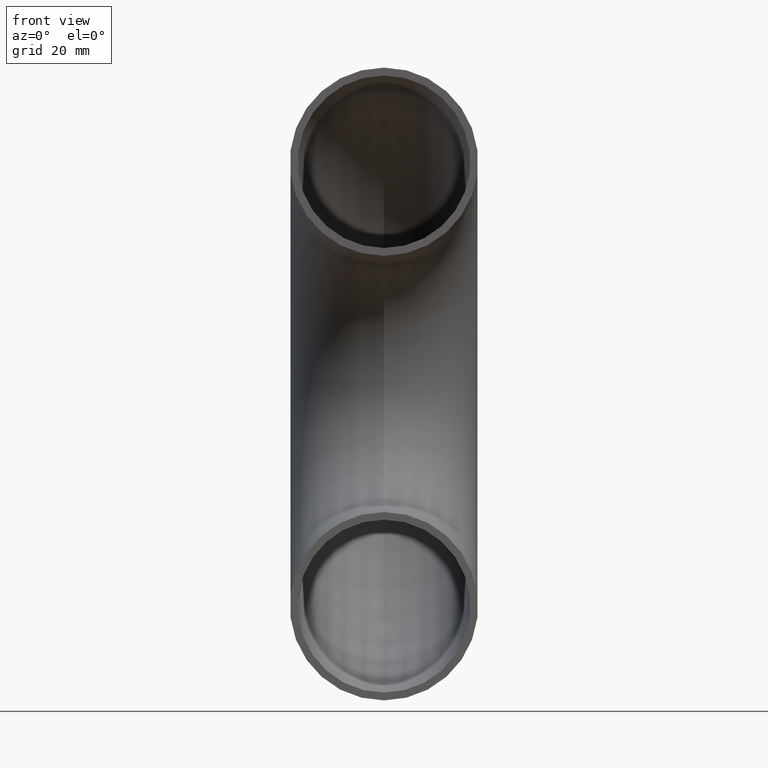
[diagram: clean part render]
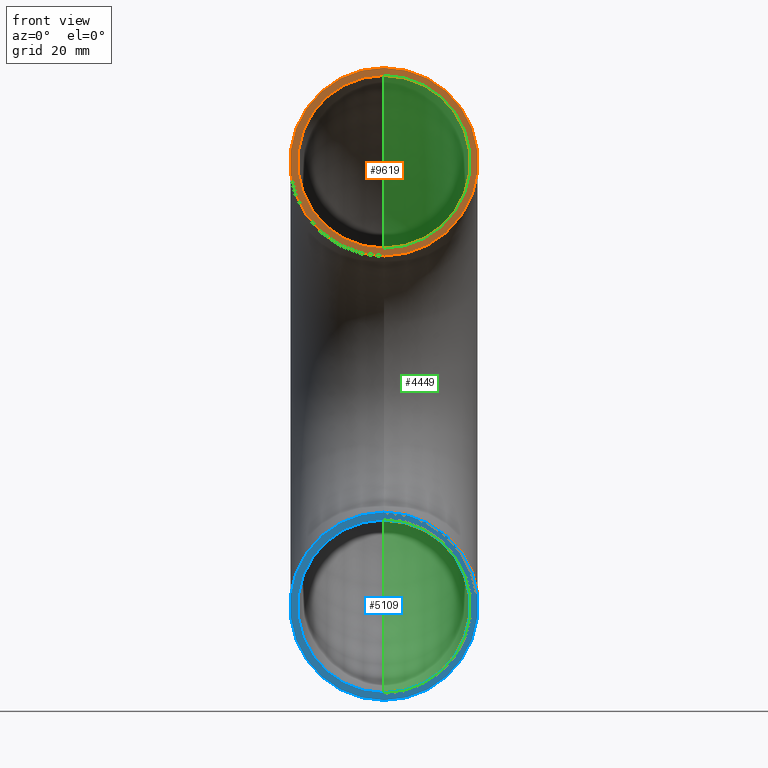
[diagram: same view with three faces highlighted in distinct colors, each labeled with its STEP entity id]
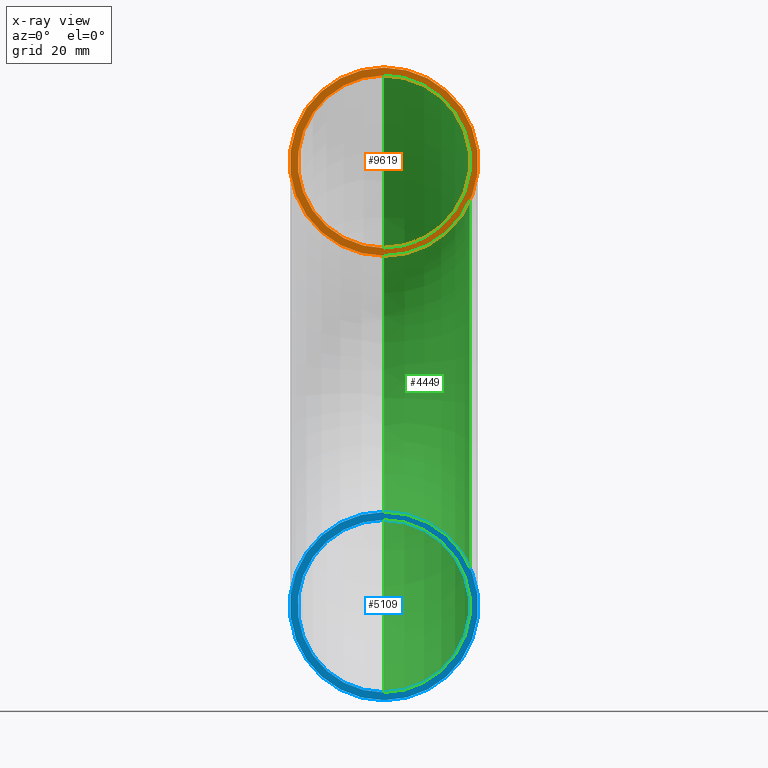
[diagram: x-ray of the same camera — body ghosted, the three highlighted faces saturated]
A machine part, front view with three faces highlighted in distinct colors.
The next image is the same camera in x-ray (body ghosted, the three faces saturated) — at least one of them is partly hidden behind the body in this view.
Their STEP definitions:

[orange] entity #9619 — the highlighted planar face has unit normal (0, -1, 0).
#102 = EDGE_LOOP ( 'NONE', ( #2790, #3072 ) ) ;
#110 = VERTEX_POINT ( 'NONE', #5860 ) ;
#126 = VERTEX_POINT ( 'NONE', #5056 ) ;
#154 = AXIS2_PLACEMENT_3D ( 'NONE', #3656, #4580, #1216 ) ;
#215 = EDGE_CURVE ( 'NONE', #4041, #7655, #7259, .T. ) ;
#1216 = DIRECTION ( 'NONE',  ( 0.0000000000000000000, -1.224646799147353500E-016, -1.000000000000000000 ) ) ;
#1340 = EDGE_CURVE ( 'NONE', #7655, #4041, #2368, .T. ) ;
#1665 = CARTESIAN_POINT ( 'NONE',  ( 0.0000000000000000000, 6.980486755139909800E-015, 56.99999999999997200 ) ) ;
#2013 = CARTESIAN_POINT ( 'NONE',  ( 0.0000000000000000000, 4.267894095028523700E-015, 34.84999999999998000 ) ) ;
#2360 = EDGE_CURVE ( 'NONE', #126, #110, #8181, .T. ) ;
#2368 = CIRCLE ( 'NONE', #9953, 22.14999999999999500 ) ;
#2452 = AXIS2_PLACEMENT_3D ( 'NONE', #9990, #7578, #10067 ) ;
#2790 = ORIENTED_EDGE ( 'NONE', *, *, #9008, .T. ) ;
#2927 = AXIS2_PLACEMENT_3D ( 'NONE', #1665, #8525, #5914 ) ;
#3072 = ORIENTED_EDGE ( 'NONE', *, *, #2360, .T. ) ;
#3656 = CARTESIAN_POINT ( 'NONE',  ( 0.0000000000000000000, 6.980486755139909800E-015, 56.99999999999997200 ) ) ;
#3758 = ORIENTED_EDGE ( 'NONE', *, *, #215, .F. ) ;
#3764 = CARTESIAN_POINT ( 'NONE',  ( 0.0000000000000000000, 6.980486755139909800E-015, 56.99999999999997200 ) ) ;
#3884 = FACE_BOUND ( 'NONE', #10156, .T. ) ;
#4041 = VERTEX_POINT ( 'NONE', #6513 ) ;
#4193 = PLANE ( 'NONE',  #2927 ) ;
#4580 = DIRECTION ( 'NONE',  ( 0.0000000000000000000, -1.000000000000000000, 1.224646799147353200E-016 ) ) ;
#5056 = CARTESIAN_POINT ( 'NONE',  ( 0.0000000000000000000, 9.938008775080767700E-015, 81.14999999999997700 ) ) ;
#5332 = FACE_OUTER_BOUND ( 'NONE', #102, .T. ) ;
#5428 = DIRECTION ( 'NONE',  ( 0.0000000000000000000, -1.224646799147353000E-016, -1.000000000000000000 ) ) ;
#5860 = CARTESIAN_POINT ( 'NONE',  ( 0.0000000000000000000, 4.022964735199051800E-015, 32.84999999999997300 ) ) ;
#5914 = DIRECTION ( 'NONE',  ( 0.0000000000000000000, -1.224646799147353200E-016, -1.000000000000000000 ) ) ;
#6513 = CARTESIAN_POINT ( 'NONE',  ( 0.0000000000000000000, 9.693079415251297400E-015, 79.14999999999997700 ) ) ;
#7170 = DIRECTION ( 'NONE',  ( 0.0000000000000000000, -1.000000000000000000, 1.224646799147353200E-016 ) ) ;
#7259 = CIRCLE ( 'NONE', #10655, 22.14999999999999500 ) ;
#7492 = CIRCLE ( 'NONE', #154, 24.14999999999999900 ) ;
#7578 = DIRECTION ( 'NONE',  ( 0.0000000000000000000, -1.000000000000000000, 1.224646799147353200E-016 ) ) ;
#7655 = VERTEX_POINT ( 'NONE', #2013 ) ;
#7681 = CARTESIAN_POINT ( 'NONE',  ( 0.0000000000000000000, 6.980486755139909800E-015, 56.99999999999997200 ) ) ;
#7719 = DIRECTION ( 'NONE',  ( 0.0000000000000000000, -1.224646799147353000E-016, -1.000000000000000000 ) ) ;
#8181 = CIRCLE ( 'NONE', #2452, 24.14999999999999900 ) ;
#8525 = DIRECTION ( 'NONE',  ( 0.0000000000000000000, -1.000000000000000000, 1.224646799147353200E-016 ) ) ;
#9008 = EDGE_CURVE ( 'NONE', #110, #126, #7492, .T. ) ;
#9361 = ORIENTED_EDGE ( 'NONE', *, *, #1340, .F. ) ;
#9462 = DIRECTION ( 'NONE',  ( 0.0000000000000000000, -1.000000000000000000, 1.224646799147353200E-016 ) ) ;
#9619 = ADVANCED_FACE ( 'NONE', ( #3884, #5332 ), #4193, .T. ) ;
#9953 = AXIS2_PLACEMENT_3D ( 'NONE', #3764, #7170, #5428 ) ;
#9990 = CARTESIAN_POINT ( 'NONE',  ( 0.0000000000000000000, 6.980486755139909800E-015, 56.99999999999997200 ) ) ;
#10067 = DIRECTION ( 'NONE',  ( 0.0000000000000000000, -1.224646799147353500E-016, -1.000000000000000000 ) ) ;
#10156 = EDGE_LOOP ( 'NONE', ( #9361, #3758 ) ) ;
#10655 = AXIS2_PLACEMENT_3D ( 'NONE', #7681, #9462, #7719 ) ;

[blue] entity #5109 — the highlighted planar face has unit normal (0, 1, 0).
#369 = VERTEX_POINT ( 'NONE', #1417 ) ;
#1073 = DIRECTION ( 'NONE',  ( 0.0000000000000000000, 0.0000000000000000000, 1.000000000000000000 ) ) ;
#1132 = CIRCLE ( 'NONE', #2215, 24.14999999999999900 ) ;
#1133 = CARTESIAN_POINT ( 'NONE',  ( 0.0000000000000000000, 0.0000000000000000000, -56.99999999999997200 ) ) ;
#1311 = CARTESIAN_POINT ( 'NONE',  ( 0.0000000000000000000, 0.0000000000000000000, -34.84999999999998000 ) ) ;
#1417 = CARTESIAN_POINT ( 'NONE',  ( 0.0000000000000000000, 0.0000000000000000000, -32.84999999999997300 ) ) ;
#1619 = VERTEX_POINT ( 'NONE', #7850 ) ;
#2215 = AXIS2_PLACEMENT_3D ( 'NONE', #5871, #2396, #4156 ) ;
#2332 = FACE_BOUND ( 'NONE', #8318, .T. ) ;
#2396 = DIRECTION ( 'NONE',  ( 0.0000000000000000000, 1.000000000000000000, 0.0000000000000000000 ) ) ;
#2831 = CARTESIAN_POINT ( 'NONE',  ( 0.0000000000000000000, 0.0000000000000000000, -56.99999999999997200 ) ) ;
#3280 = EDGE_CURVE ( 'NONE', #369, #7555, #3536, .T. ) ;
#3536 = CIRCLE ( 'NONE', #7404, 24.14999999999999900 ) ;
#3694 = DIRECTION ( 'NONE',  ( 0.0000000000000000000, 0.0000000000000000000, 1.000000000000000000 ) ) ;
#4109 = EDGE_LOOP ( 'NONE', ( #6462, #8067 ) ) ;
#4156 = DIRECTION ( 'NONE',  ( 0.0000000000000000000, 0.0000000000000000000, 1.000000000000000000 ) ) ;
#4471 = CARTESIAN_POINT ( 'NONE',  ( 0.0000000000000000000, 0.0000000000000000000, -81.14999999999997700 ) ) ;
#4501 = CIRCLE ( 'NONE', #9331, 22.14999999999999500 ) ;
#4687 = DIRECTION ( 'NONE',  ( 0.0000000000000000000, 1.000000000000000000, 0.0000000000000000000 ) ) ;
#4833 = FACE_OUTER_BOUND ( 'NONE', #4109, .T. ) ;
#5096 = DIRECTION ( 'NONE',  ( 0.0000000000000000000, 0.0000000000000000000, 1.000000000000000000 ) ) ;
#5109 = ADVANCED_FACE ( 'NONE', ( #2332, #4833 ), #5473, .F. ) ;
#5259 = ORIENTED_EDGE ( 'NONE', *, *, #6566, .T. ) ;
#5473 = PLANE ( 'NONE',  #9044 ) ;
#5871 = CARTESIAN_POINT ( 'NONE',  ( 0.0000000000000000000, 0.0000000000000000000, -56.99999999999997200 ) ) ;
#6074 = EDGE_CURVE ( 'NONE', #6181, #1619, #4501, .T. ) ;
#6117 = DIRECTION ( 'NONE',  ( 0.0000000000000000000, 1.000000000000000000, 0.0000000000000000000 ) ) ;
#6181 = VERTEX_POINT ( 'NONE', #1311 ) ;
#6311 = DIRECTION ( 'NONE',  ( 0.0000000000000000000, -0.0000000000000000000, 1.000000000000000000 ) ) ;
#6462 = ORIENTED_EDGE ( 'NONE', *, *, #3280, .F. ) ;
#6566 = EDGE_CURVE ( 'NONE', #1619, #6181, #9912, .T. ) ;
#6997 = DIRECTION ( 'NONE',  ( 0.0000000000000000000, 1.000000000000000000, 0.0000000000000000000 ) ) ;
#7404 = AXIS2_PLACEMENT_3D ( 'NONE', #2831, #6997, #1073 ) ;
#7555 = VERTEX_POINT ( 'NONE', #4471 ) ;
#7622 = AXIS2_PLACEMENT_3D ( 'NONE', #7659, #10182, #5096 ) ;
#7659 = CARTESIAN_POINT ( 'NONE',  ( 0.0000000000000000000, 0.0000000000000000000, -56.99999999999997200 ) ) ;
#7850 = CARTESIAN_POINT ( 'NONE',  ( 0.0000000000000000000, 0.0000000000000000000, -79.14999999999997700 ) ) ;
#8067 = ORIENTED_EDGE ( 'NONE', *, *, #10060, .F. ) ;
#8318 = EDGE_LOOP ( 'NONE', ( #9788, #5259 ) ) ;
#9044 = AXIS2_PLACEMENT_3D ( 'NONE', #9762, #4687, #6311 ) ;
#9331 = AXIS2_PLACEMENT_3D ( 'NONE', #1133, #6117, #3694 ) ;
#9762 = CARTESIAN_POINT ( 'NONE',  ( 0.0000000000000000000, 0.0000000000000000000, -56.99999999999997200 ) ) ;
#9788 = ORIENTED_EDGE ( 'NONE', *, *, #6074, .T. ) ;
#9912 = CIRCLE ( 'NONE', #7622, 22.14999999999999500 ) ;
#10060 = EDGE_CURVE ( 'NONE', #7555, #369, #1132, .T. ) ;
#10182 = DIRECTION ( 'NONE',  ( 0.0000000000000000000, 1.000000000000000000, 0.0000000000000000000 ) ) ;

[green] entity #4449 — the highlighted toroidal blend (fillet) surface has major radius 57 mm and minor (blend) radius 22.15 mm.
#173 = CARTESIAN_POINT ( 'NONE',  ( 2.712592660111386800E-015, 0.0000000000000000000, 0.0000000000000000000 ) ) ;
#328 = DIRECTION ( 'NONE',  ( 0.0000000000000000000, 0.0000000000000000000, 1.000000000000000000 ) ) ;
#555 = CIRCLE ( 'NONE', #3880, 79.14999999999997700 ) ;
#1133 = CARTESIAN_POINT ( 'NONE',  ( 0.0000000000000000000, 0.0000000000000000000, -56.99999999999997200 ) ) ;
#1311 = CARTESIAN_POINT ( 'NONE',  ( 0.0000000000000000000, 0.0000000000000000000, -34.84999999999998000 ) ) ;
#1340 = EDGE_CURVE ( 'NONE', #7655, #4041, #2368, .T. ) ;
#1619 = VERTEX_POINT ( 'NONE', #7850 ) ;
#1707 = ORIENTED_EDGE ( 'NONE', *, *, #6022, .T. ) ;
#2013 = CARTESIAN_POINT ( 'NONE',  ( 0.0000000000000000000, 4.267894095028523700E-015, 34.84999999999998000 ) ) ;
#2368 = CIRCLE ( 'NONE', #9953, 22.14999999999999500 ) ;
#3000 = TOROIDAL_SURFACE ( 'NONE', #8132, 56.99999999999997200, 22.14999999999999500 ) ;
#3459 = DIRECTION ( 'NONE',  ( -1.000000000000000000, -0.0000000000000000000, -0.0000000000000000000 ) ) ;
#3694 = DIRECTION ( 'NONE',  ( 0.0000000000000000000, 0.0000000000000000000, 1.000000000000000000 ) ) ;
#3764 = CARTESIAN_POINT ( 'NONE',  ( 0.0000000000000000000, 6.980486755139909800E-015, 56.99999999999997200 ) ) ;
#3880 = AXIS2_PLACEMENT_3D ( 'NONE', #8740, #10431, #4207 ) ;
#4041 = VERTEX_POINT ( 'NONE', #6513 ) ;
#4207 = DIRECTION ( 'NONE',  ( 0.0000000000000000000, 0.0000000000000000000, 1.000000000000000000 ) ) ;
#4224 = ORIENTED_EDGE ( 'NONE', *, *, #6074, .F. ) ;
#4299 = DIRECTION ( 'NONE',  ( 0.0000000000000000000, 0.0000000000000000000, 1.000000000000000000 ) ) ;
#4449 = ADVANCED_FACE ( 'NONE', ( #10397 ), #3000, .F. ) ;
#4501 = CIRCLE ( 'NONE', #9331, 22.14999999999999500 ) ;
#5366 = DIRECTION ( 'NONE',  ( -1.000000000000000000, -0.0000000000000000000, -0.0000000000000000000 ) ) ;
#5428 = DIRECTION ( 'NONE',  ( 0.0000000000000000000, -1.224646799147353000E-016, -1.000000000000000000 ) ) ;
#6022 = EDGE_CURVE ( 'NONE', #4041, #1619, #555, .T. ) ;
#6074 = EDGE_CURVE ( 'NONE', #6181, #1619, #4501, .T. ) ;
#6117 = DIRECTION ( 'NONE',  ( 0.0000000000000000000, 1.000000000000000000, 0.0000000000000000000 ) ) ;
#6181 = VERTEX_POINT ( 'NONE', #1311 ) ;
#6511 = CIRCLE ( 'NONE', #8798, 34.84999999999998000 ) ;
#6513 = CARTESIAN_POINT ( 'NONE',  ( 0.0000000000000000000, 9.693079415251297400E-015, 79.14999999999997700 ) ) ;
#6699 = ORIENTED_EDGE ( 'NONE', *, *, #1340, .T. ) ;
#7170 = DIRECTION ( 'NONE',  ( 0.0000000000000000000, -1.000000000000000000, 1.224646799147353200E-016 ) ) ;
#7426 = ORIENTED_EDGE ( 'NONE', *, *, #10137, .F. ) ;
#7655 = VERTEX_POINT ( 'NONE', #2013 ) ;
#7850 = CARTESIAN_POINT ( 'NONE',  ( 0.0000000000000000000, 0.0000000000000000000, -79.14999999999997700 ) ) ;
#8132 = AXIS2_PLACEMENT_3D ( 'NONE', #9556, #5366, #328 ) ;
#8210 = EDGE_LOOP ( 'NONE', ( #6699, #1707, #4224, #7426 ) ) ;
#8740 = CARTESIAN_POINT ( 'NONE',  ( 0.0000000000000000000, 0.0000000000000000000, 0.0000000000000000000 ) ) ;
#8798 = AXIS2_PLACEMENT_3D ( 'NONE', #173, #3459, #4299 ) ;
#9331 = AXIS2_PLACEMENT_3D ( 'NONE', #1133, #6117, #3694 ) ;
#9556 = CARTESIAN_POINT ( 'NONE',  ( 0.0000000000000000000, 0.0000000000000000000, 0.0000000000000000000 ) ) ;
#9953 = AXIS2_PLACEMENT_3D ( 'NONE', #3764, #7170, #5428 ) ;
#10137 = EDGE_CURVE ( 'NONE', #7655, #6181, #6511, .T. ) ;
#10397 = FACE_OUTER_BOUND ( 'NONE', #8210, .T. ) ;
#10431 = DIRECTION ( 'NONE',  ( -1.000000000000000000, -0.0000000000000000000, -0.0000000000000000000 ) ) ;